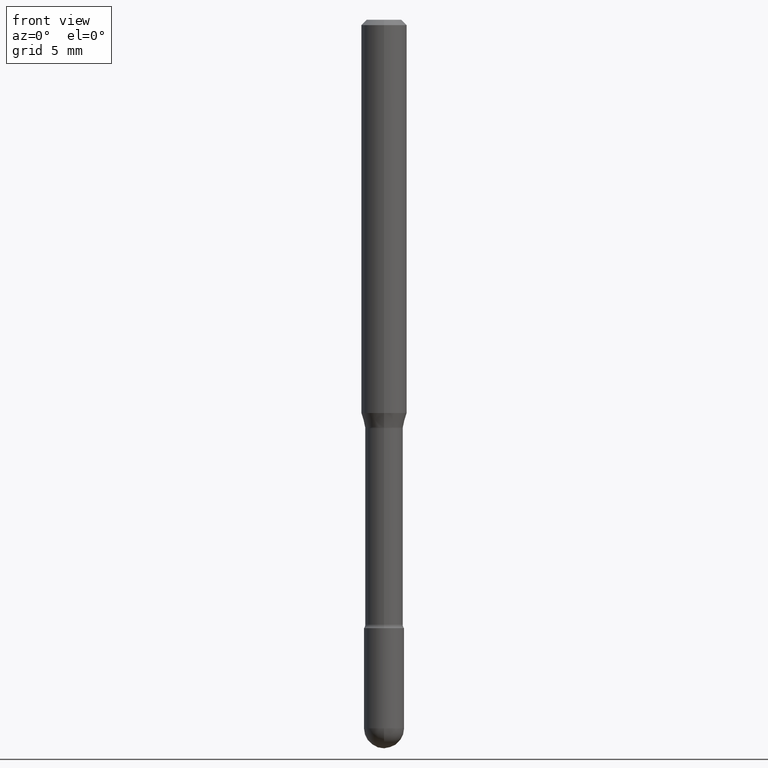
[diagram: clean part render]
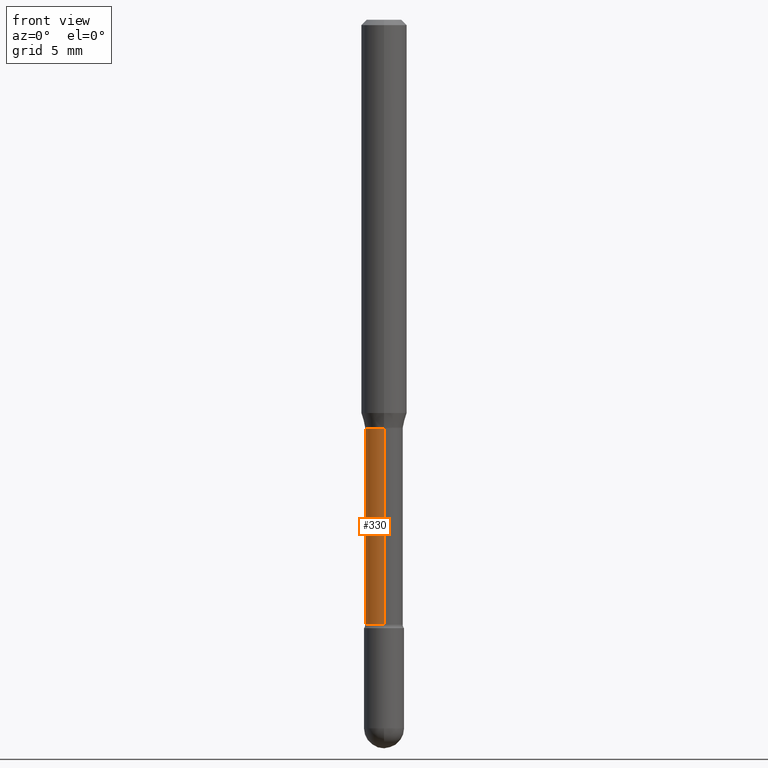
[diagram: same view with one face highlighted and labeled with its STEP entity id]
A machine part, front view. The second image highlights one B-rep face of the part: STEP entity #330.
In plain terms, the highlighted cylindrical surface (edge-blend (fillet) strip) has radius 1.3132 mm, axis along (-0, 0, 1).
Its self-contained STEP definition (entity closure, byte-faithful):
#21 = CARTESIAN_POINT ( 'NONE',  ( -3.610191704363525413E-16, -0.05170000000000391643, -1.121974787463810408 ) ) ;
#40 = DIRECTION ( 'NONE',  ( -2.445407676083819856E-29, 3.491568880627540289E-15, 1.000000000000000000 ) ) ;
#47 = DIRECTION ( 'NONE',  ( -2.445407676083820136E-29, 3.491568880627540684E-15, 1.000000000000000000 ) ) ;
#49 = CARTESIAN_POINT ( 'NONE',  ( -3.610191704363799542E-16, -0.05170000000000000984, 6.585875100196899420E-16 ) ) ;
#66 = VERTEX_POINT ( 'NONE', #188 ) ;
#68 = CARTESIAN_POINT ( 'NONE',  ( -3.610191704363393772E-16, -0.05170000000000580381, -1.660613307291702423 ) ) ;
#80 = DIRECTION ( 'NONE',  ( -2.445407676083819856E-29, 3.491568880627540289E-15, 1.000000000000000000 ) ) ;
#89 = DIRECTION ( 'NONE',  ( -6.982962677686266711E-15, -1.000000000000000000, 2.642019336232363246E-15 ) ) ;
#119 = FACE_OUTER_BOUND ( 'NONE', #304, .T. ) ;
#123 = DIRECTION ( 'NONE',  ( -6.982962677686264344E-15, -1.000000000000000000, 3.491568880627541472E-15 ) ) ;
#128 = CARTESIAN_POINT ( 'NONE',  ( -1.169113584055446105E-44, 1.669184350826100908E-30, 4.780733988912460139E-16 ) ) ;
#139 = VERTEX_POINT ( 'NONE', #21 ) ;
#142 = CARTESIAN_POINT ( 'NONE',  ( 3.673505943879717674E-16, 0.05170000000000000984, 2.975592877628021845E-16 ) ) ;
#154 = ORIENTED_EDGE ( 'NONE', *, *, #541, .F. ) ;
#156 = VERTEX_POINT ( 'NONE', #68 ) ;
#157 = VERTEX_POINT ( 'NONE', #229 ) ;
#187 = LINE ( 'NONE', #49, #564 ) ;
#188 = CARTESIAN_POINT ( 'NONE',  ( 3.790745495280543333E-16, 0.05169999999999420892, -1.660613307291702867 ) ) ;
#229 = CARTESIAN_POINT ( 'NONE',  ( 3.673505943880124923E-16, 0.05169999999999608242, -1.121974787463810630 ) ) ;
#249 = DIRECTION ( 'NONE',  ( -6.982962677686264344E-15, -1.000000000000000000, 5.284038672464724914E-15 ) ) ;
#250 = CARTESIAN_POINT ( 'NONE',  ( 4.060876528658069036E-29, -5.798145746495687902E-15, -1.660613307291702645 ) ) ;
#258 = AXIS2_PLACEMENT_3D ( 'NONE', #128, #40, #123 ) ;
#262 = DIRECTION ( 'NONE',  ( -2.445407676083820136E-29, 3.491568880627540684E-15, 1.000000000000000000 ) ) ;
#266 = VECTOR ( 'NONE', #47, 39.37007874015748143 ) ;
#268 = CARTESIAN_POINT ( 'NONE',  ( 2.743685757636514804E-29, -3.917452252757339615E-15, -1.121974787463810630 ) ) ;
#304 = EDGE_LOOP ( 'NONE', ( #154, #388, #464, #449 ) ) ;
#330 = ADVANCED_FACE ( 'NONE', ( #119 ), #516, .T. ) ;
#348 = LINE ( 'NONE', #142, #266 ) ;
#366 = AXIS2_PLACEMENT_3D ( 'NONE', #268, #527, #89 ) ;
#388 = ORIENTED_EDGE ( 'NONE', *, *, #434, .T. ) ;
#404 = AXIS2_PLACEMENT_3D ( 'NONE', #250, #80, #249 ) ;
#434 = EDGE_CURVE ( 'NONE', #66, #156, #462, .T. ) ;
#449 = ORIENTED_EDGE ( 'NONE', *, *, #488, .F. ) ;
#462 = CIRCLE ( 'NONE', #404, 0.05170000000000000984 ) ;
#464 = ORIENTED_EDGE ( 'NONE', *, *, #520, .T. ) ;
#469 = CIRCLE ( 'NONE', #366, 0.05169999999999999596 ) ;
#488 = EDGE_CURVE ( 'NONE', #157, #139, #469, .T. ) ;
#516 = CYLINDRICAL_SURFACE ( 'NONE', #258, 0.05170000000000000984 ) ;
#520 = EDGE_CURVE ( 'NONE', #156, #139, #187, .T. ) ;
#527 = DIRECTION ( 'NONE',  ( -2.445407676083819856E-29, 3.491568880627540289E-15, 1.000000000000000000 ) ) ;
#541 = EDGE_CURVE ( 'NONE', #66, #157, #348, .T. ) ;
#564 = VECTOR ( 'NONE', #262, 39.37007874015748143 ) ;